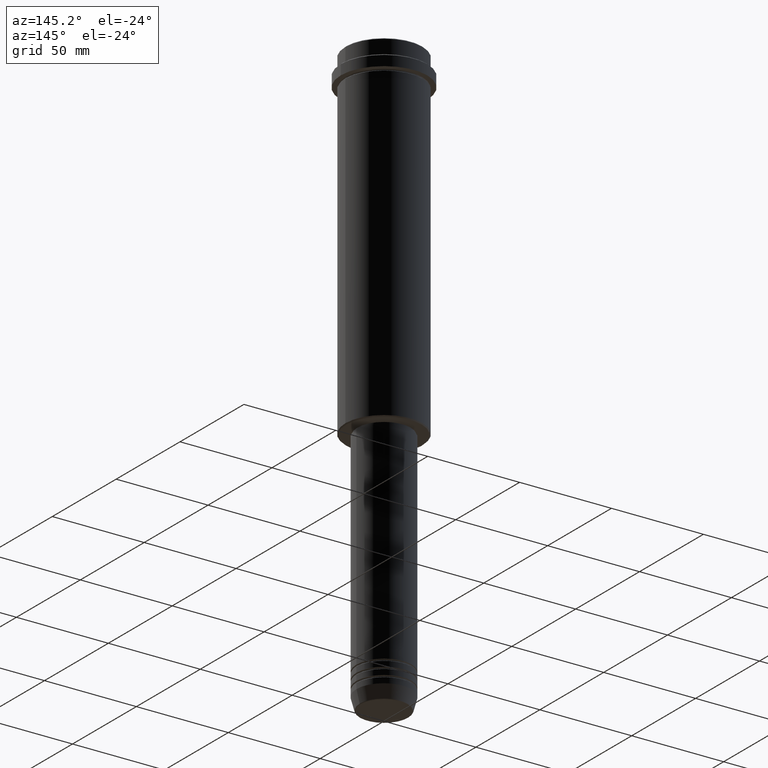
[diagram: clean part render]
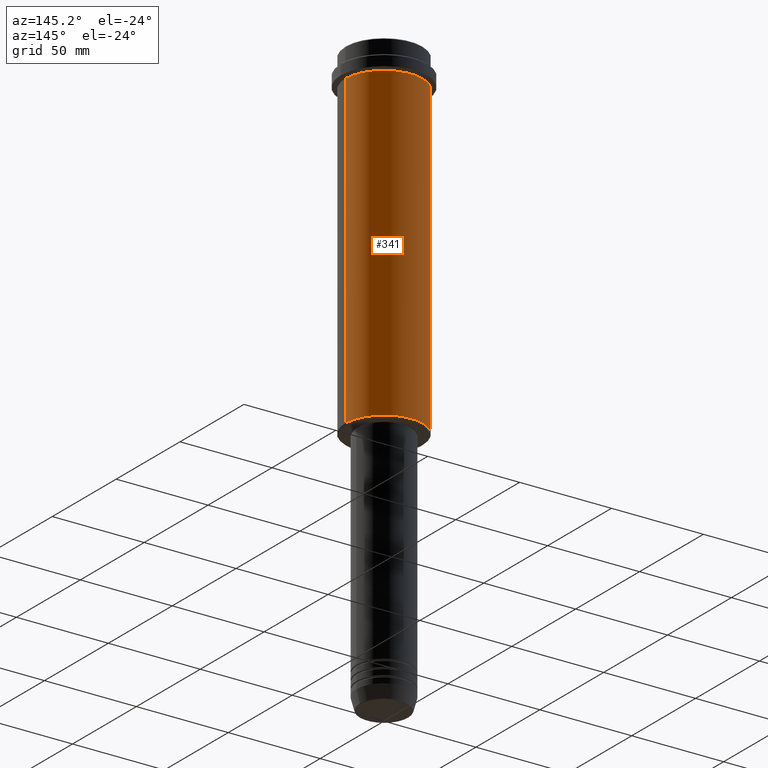
[diagram: same view with one face highlighted and labeled with its STEP entity id]
A machine part, auxiliary view. The second image highlights one B-rep face of the part: STEP entity #341.
In plain terms, the highlighted cylindrical surface (partial cylindrical patch) has radius 21 mm, axis along (-0, -0, 1).
Its self-contained STEP definition (entity closure, byte-faithful):
#1 = EDGE_CURVE ( 'NONE', #482, #1366, #274, .T. ) ;
#36 = DIRECTION ( 'NONE',  ( -0.000000000000000000, -0.000000000000000000, 1.000000000000000000 ) ) ;
#41 = VECTOR ( 'NONE', #73, 1000.000000000000000 ) ;
#50 = CARTESIAN_POINT ( 'NONE',  ( 0.000000000000000000, 0.000000000000000000, 0.000000000000000000 ) ) ;
#61 = DIRECTION ( 'NONE',  ( 1.000000000000000000, 0.000000000000000000, 0.000000000000000000 ) ) ;
#73 = DIRECTION ( 'NONE',  ( -0.000000000000000000, -0.000000000000000000, 1.000000000000000000 ) ) ;
#80 = AXIS2_PLACEMENT_3D ( 'NONE', #50, #487, #716 ) ;
#163 = CARTESIAN_POINT ( 'NONE',  ( 0.000000000000000000, 0.000000000000000000, -16.00000000000000355 ) ) ;
#164 = DIRECTION ( 'NONE',  ( -0.000000000000000000, -0.000000000000000000, 1.000000000000000000 ) ) ;
#274 = LINE ( 'NONE', #712, #311 ) ;
#311 = VECTOR ( 'NONE', #164, 1000.000000000000000 ) ;
#341 = ADVANCED_FACE ( 'NONE', ( #917 ), #800, .T. ) ;
#342 = ORIENTED_EDGE ( 'NONE', *, *, #353, .F. ) ;
#353 = EDGE_CURVE ( 'NONE', #1366, #530, #542, .T. ) ;
#410 = CARTESIAN_POINT ( 'NONE',  ( -20.99999999999999645, 2.571758278209441267E-15, -16.00000000000000355 ) ) ;
#469 = DIRECTION ( 'NONE',  ( -1.000000000000000000, 0.000000000000000000, 0.000000000000000000 ) ) ;
#482 = VERTEX_POINT ( 'NONE', #966 ) ;
#487 = DIRECTION ( 'NONE',  ( -0.000000000000000000, -0.000000000000000000, 1.000000000000000000 ) ) ;
#514 = CARTESIAN_POINT ( 'NONE',  ( -20.99999999999999645, 2.571758278209441267E-15, -184.5000000000000284 ) ) ;
#530 = VERTEX_POINT ( 'NONE', #410 ) ;
#532 = LINE ( 'NONE', #1057, #41 ) ;
#542 = CIRCLE ( 'NONE', #1347, 20.99999999999999645 ) ;
#571 = EDGE_CURVE ( 'NONE', #584, #530, #532, .T. ) ;
#584 = VERTEX_POINT ( 'NONE', #514 ) ;
#617 = AXIS2_PLACEMENT_3D ( 'NONE', #1035, #36, #469 ) ;
#712 = CARTESIAN_POINT ( 'NONE',  ( 20.99999999999999645, 0.000000000000000000, 0.000000000000000000 ) ) ;
#716 = DIRECTION ( 'NONE',  ( 1.000000000000000000, 0.000000000000000000, 0.000000000000000000 ) ) ;
#774 = ORIENTED_EDGE ( 'NONE', *, *, #571, .T. ) ;
#800 = CYLINDRICAL_SURFACE ( 'NONE', #80, 20.99999999999999645 ) ;
#814 = EDGE_LOOP ( 'NONE', ( #861, #774, #342, #1405 ) ) ;
#861 = ORIENTED_EDGE ( 'NONE', *, *, #1229, .T. ) ;
#917 = FACE_OUTER_BOUND ( 'NONE', #814, .T. ) ;
#942 = DIRECTION ( 'NONE',  ( -0.000000000000000000, -0.000000000000000000, 1.000000000000000000 ) ) ;
#959 = CIRCLE ( 'NONE', #617, 20.99999999999999645 ) ;
#966 = CARTESIAN_POINT ( 'NONE',  ( 20.99999999999999645, 0.000000000000000000, -184.5000000000000284 ) ) ;
#1035 = CARTESIAN_POINT ( 'NONE',  ( 0.000000000000000000, 0.000000000000000000, -184.5000000000000284 ) ) ;
#1057 = CARTESIAN_POINT ( 'NONE',  ( -20.99999999999999645, 2.571758278209441267E-15, 0.000000000000000000 ) ) ;
#1202 = CARTESIAN_POINT ( 'NONE',  ( 20.99999999999999645, 0.000000000000000000, -16.00000000000000355 ) ) ;
#1229 = EDGE_CURVE ( 'NONE', #482, #584, #959, .T. ) ;
#1347 = AXIS2_PLACEMENT_3D ( 'NONE', #163, #942, #61 ) ;
#1366 = VERTEX_POINT ( 'NONE', #1202 ) ;
#1405 = ORIENTED_EDGE ( 'NONE', *, *, #1, .F. ) ;